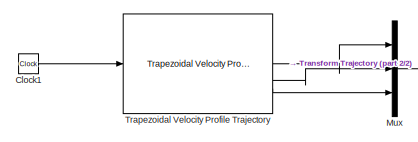
[diagram: root canvas - part 1/2, top left region]
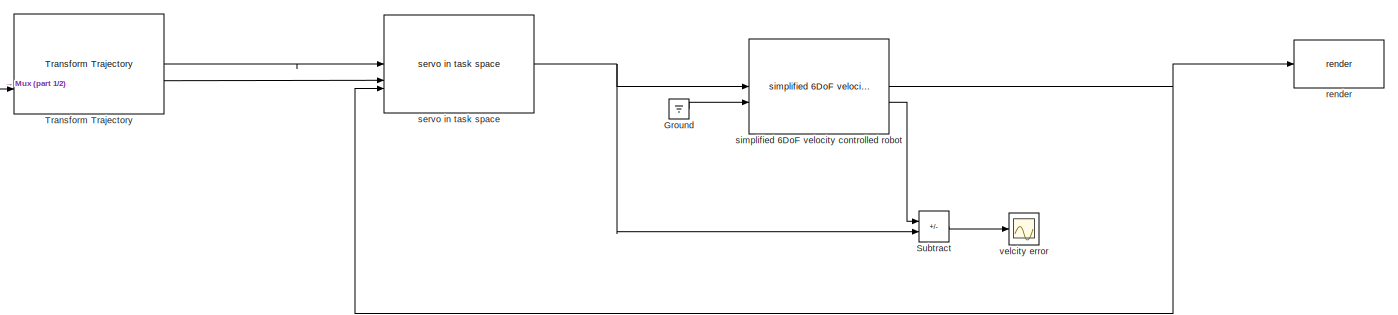
[diagram: root canvas - part 2/2, most of the canvas]
MODEL slx_f67556f83c2e
KIND model
CONFIG AbsTol = auto
CONFIG EnableMultiTasking = off
CONFIG FixedStep = 0.005
CONFIG MaxStep = 0.2
CONFIG MinStep = auto
CONFIG PostLoadFcn = rigid_body = importrobot('urdf\aubo_description\urdf\aubo_i5.urdf');\nrigid_body.DataFormat = 'column';\nrigid_body.Gravity = [0 0 -9.81];\ninit_joint_pos = [0,-45,90,45,90, 0] / 180 * pi;\nrobot = get_robot_chain(rigid_body);\nn = robot.dof;\nT_init = forward_kin_general(robot, init_joint_pos);
CONFIG RelTol = 1e-3
CONFIG SampleTimeConstraint = Unconstrained
CONFIG SolverName = ode4
CONFIG StartTime = 0.0
CONFIG StopTime = 10.0
BLOCK [Clock] Clock1
BLOCK [Ground] Ground
BLOCK [Mux] Mux
  DisplayOption = bar
  Inputs = 3
BLOCK [Sum] Subtract
  IconShape = rectangular
  Inputs = +-
BLOCK [Reference] Transform Trajectory  REF=robotcorelib/Transform Trajectory
  LibrarySourceBlock = robotutilslib/Transform Trajectory
  SourceBlock = robotcorelib/Transform Trajectory
  SourceType = robotics.slcore.internal.block.TransformTrajSys
BLOCK [Reference] Trapezoidal Velocity Profile Trajectory  REF=robotcorelib/Trapezoidal Velocity Profile Trajectory
  LibrarySourceBlock = robotutilslib/Trapezoidal Velocity Profile Trajectory
  SourceBlock = robotcorelib/Trapezoidal Velocity Profile Trajectory
  SourceType = robotics.slcore.internal.block.TrapVelTrajSys
BLOCK [Reference] render  REF=my_library/render  (lib defined in slx_4b070192c2bc, slx_8dfaa4fb899d, +2 more)
  SourceBlock = my_library/render
  SourceProductName = MyLibrary
BLOCK [Reference] servo in task space  REF=my_library/servo in task space  (lib defined in slx_4b070192c2bc, slx_8dfaa4fb899d, +2 more)
  SourceBlock = my_library/servo in task space
BLOCK [Reference] simplified 6DoF velocity controlled robot  REF=my_library/simplified 6DoF velocity controlled robot  (lib defined in slx_4b070192c2bc, slx_8dfaa4fb899d, +2 more)
  SourceBlock = my_library/simplified 6DoF velocity controlled robot
  SourceProductName = MyLibrary
BLOCK [Scope] velcity error
  ActiveDisplayYMaximum = 0.00406429240754507
  ActiveDisplayYMinimum = -0.0035574663624260974
  DataLoggingVariableName = ScopeData3
  Floating = off
  GraphicalSettings = {"Style":{"BackgroundColor":[0.12941176470588237,0.12941176470588237,0.12941176470588237],"AxesColor":[0.07058823529411765,0.07058823529411765,0.07058823529411765],"LabelsColor":[0.8509803921568627,0.8509803921568627,0.8509803921568627],"PreserveColors":false,"Visible":[true,true,true,true,true,true,true],"LineStyle":["-","-","-","-","-","-","-"],"LineWidth":[1.5,1.5,1.5,1.5,1.5,1.5,1.5],"BarWidth...<+2717ch>
  MultipleDisplayCache = [{"MaxYLimMag":0.00406429240754507,"MaxYLimReal":0.00406429240754507,"MinYLimMag":0,"MinYLimReal":-0.0035574663624260974,"PlotAsMagnitudePhase":false,"ShowGrid":true,"ShowLegend":true,"Title":"%<SignalLabel>","YLabel":""}]
  NumInputPorts = 1
  ScopeFrameLocation = window
  ShowLegend = on
  WasSavedAsWebScope = on
  WindowPosition = [-1869.000000,16.000000,1707.000000,996.000000,]
LINE Clock1:1 -> Trapezoidal Velocity Profile Trajectory:1
LINE Ground:1 -> simplified 6DoF velocity controlled robot:2
LINE Mux:1 -> Transform Trajectory:3
LINE Subtract:1 -> velcity error:1
LINE Transform Trajectory:1 -> servo in task space:1
LINE Transform Trajectory:2 -> servo in task space:2
LINE Trapezoidal Velocity Profile Trajectory:1 -> Mux:1
LINE Trapezoidal Velocity Profile Trajectory:2 -> Mux:2
LINE Trapezoidal Velocity Profile Trajectory:3 -> Mux:3
NET servo in task space:1 -> Subtract:2, simplified 6DoF velocity controlled robot:1
NET simplified 6DoF velocity controlled robot:1 -> render:1, servo in task space:3
LINE simplified 6DoF velocity controlled robot:2 -> Subtract:1
note: NET lines group one-source signal fan-out (src -> all destinations, sorted); 1:1 wires keep LINE
